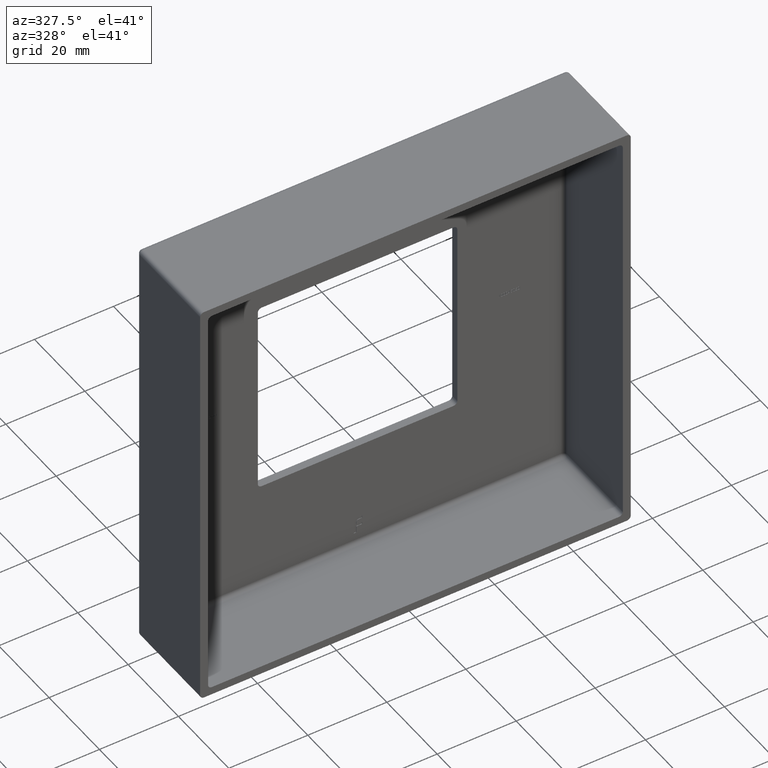
[diagram: clean part render]
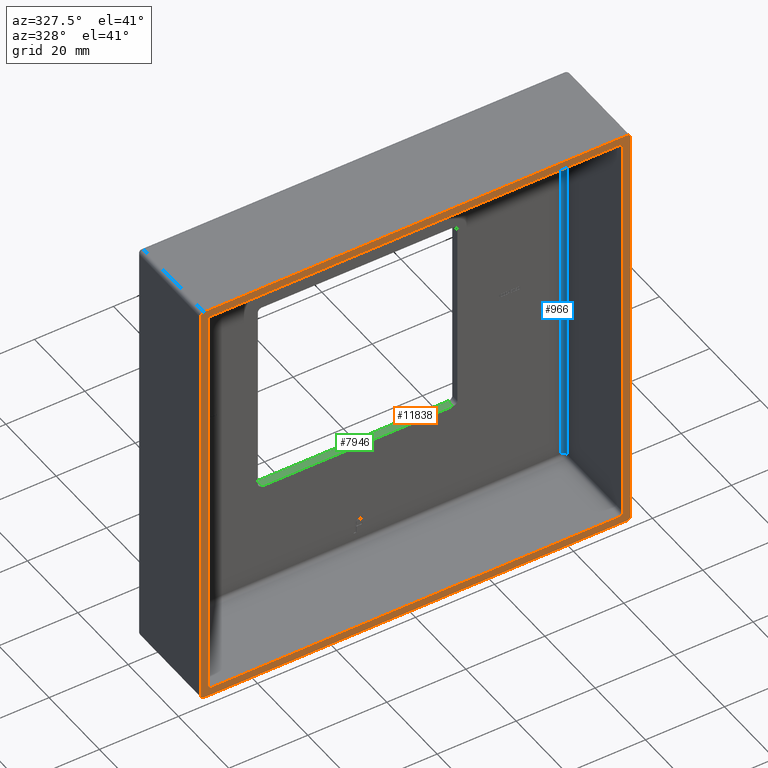
[diagram: same view with three faces highlighted in distinct colors, each labeled with its STEP entity id]
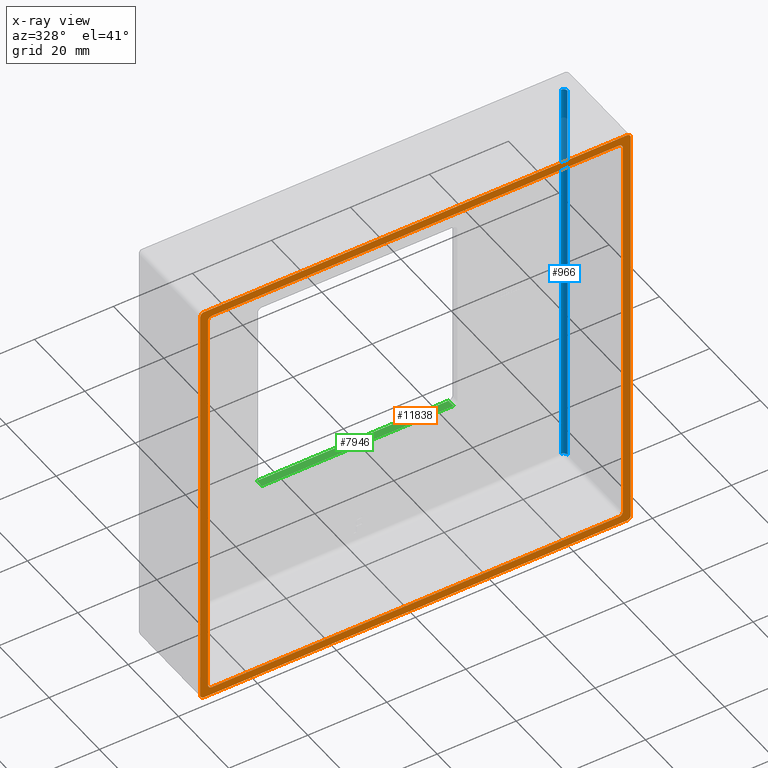
[diagram: x-ray of the same camera — body ghosted, the three highlighted faces saturated]
A machine part, auxiliary view with three faces highlighted in distinct colors.
The next image is the same camera in x-ray (body ghosted, the three faces saturated) — at least one of them is partly hidden behind the body in this view.
Their STEP definitions:

[orange] entity #11838 — the highlighted planar face has unit normal (0, 1, 0).
#179 = CARTESIAN_POINT ( 'NONE',  ( 52.50000000000000711, 0.000000000000000000, 51.49999999999999289 ) ) ;
#388 = DIRECTION ( 'NONE',  ( 1.000000000000000000, 0.000000000000000000, 0.000000000000000000 ) ) ;
#506 = CARTESIAN_POINT ( 'NONE',  ( -53.50000000000000711, 0.000000000000000000, -53.50000000000000000 ) ) ;
#750 = CIRCLE ( 'NONE', #2218, 1.000000000000000888 ) ;
#759 = CARTESIAN_POINT ( 'NONE',  ( -51.50000000000000711, 0.000000000000000000, -51.50000000000000000 ) ) ;
#862 = AXIS2_PLACEMENT_3D ( 'NONE', #8783, #11631, #7368 ) ;
#1342 = CARTESIAN_POINT ( 'NONE',  ( -52.49999999999999289, 0.000000000000000000, 51.49999999999998579 ) ) ;
#1629 = VERTEX_POINT ( 'NONE', #2452 ) ;
#1691 = VERTEX_POINT ( 'NONE', #10672 ) ;
#1896 = VECTOR ( 'NONE', #10969, 1000.000000000000000 ) ;
#1903 = PLANE ( 'NONE',  #12198 ) ;
#2003 = EDGE_CURVE ( 'NONE', #4672, #4802, #14427, .T. ) ;
#2160 = ORIENTED_EDGE ( 'NONE', *, *, #15362, .T. ) ;
#2218 = AXIS2_PLACEMENT_3D ( 'NONE', #2284, #14529, #17210 ) ;
#2238 = VECTOR ( 'NONE', #11692, 1000.000000000000000 ) ;
#2284 = CARTESIAN_POINT ( 'NONE',  ( 51.50000000000000711, 0.000000000000000000, 51.49999999999999289 ) ) ;
#2321 = CARTESIAN_POINT ( 'NONE',  ( 51.49999999999998579, 0.000000000000000000, -51.50000000000000711 ) ) ;
#2452 = CARTESIAN_POINT ( 'NONE',  ( -53.50000000000000711, 0.000000000000000000, -54.50000000000000000 ) ) ;
#2571 = EDGE_CURVE ( 'NONE', #5903, #13442, #14873, .T. ) ;
#2639 = AXIS2_PLACEMENT_3D ( 'NONE', #5487, #17447, #9490 ) ;
#2664 = LINE ( 'NONE', #13098, #2238 ) ;
#2719 = ORIENTED_EDGE ( 'NONE', *, *, #5095, .F. ) ;
#2728 = ORIENTED_EDGE ( 'NONE', *, *, #4803, .T. ) ;
#2925 = CARTESIAN_POINT ( 'NONE',  ( -54.50000000000000711, 0.000000000000000000, -52.50000000000000000 ) ) ;
#3331 = ORIENTED_EDGE ( 'NONE', *, *, #7175, .T. ) ;
#3370 = EDGE_CURVE ( 'NONE', #5903, #14940, #8477, .T. ) ;
#3434 = CIRCLE ( 'NONE', #6070, 1.000000000000000888 ) ;
#3521 = VERTEX_POINT ( 'NONE', #12221 ) ;
#3695 = DIRECTION ( 'NONE',  ( 0.000000000000000000, 0.000000000000000000, 1.000000000000000000 ) ) ;
#3997 = ORIENTED_EDGE ( 'NONE', *, *, #2571, .T. ) ;
#4069 = CIRCLE ( 'NONE', #13458, 1.000000000000000888 ) ;
#4360 = ORIENTED_EDGE ( 'NONE', *, *, #15927, .T. ) ;
#4500 = CARTESIAN_POINT ( 'NONE',  ( -53.49999999999999289, 0.000000000000000000, 54.49999999999999289 ) ) ;
#4505 = CARTESIAN_POINT ( 'NONE',  ( 54.50000000000000711, 0.000000000000000000, 53.49999999999999289 ) ) ;
#4587 = ORIENTED_EDGE ( 'NONE', *, *, #7355, .T. ) ;
#4672 = VERTEX_POINT ( 'NONE', #179 ) ;
#4716 = CARTESIAN_POINT ( 'NONE',  ( -54.50000000000000711, 0.000000000000000000, -54.50000000000000000 ) ) ;
#4802 = VERTEX_POINT ( 'NONE', #11646 ) ;
#4803 = EDGE_CURVE ( 'NONE', #9056, #3521, #13310, .T. ) ;
#5001 = CIRCLE ( 'NONE', #862, 1.000000000000000888 ) ;
#5095 = EDGE_CURVE ( 'NONE', #12000, #15005, #15666, .T. ) ;
#5195 = ORIENTED_EDGE ( 'NONE', *, *, #7479, .T. ) ;
#5257 = CARTESIAN_POINT ( 'NONE',  ( -54.49999999999999289, 0.000000000000000000, 53.49999999999998579 ) ) ;
#5482 = CIRCLE ( 'NONE', #12745, 1.000000000000000888 ) ;
#5487 = CARTESIAN_POINT ( 'NONE',  ( 53.50000000000000711, 0.000000000000000000, 53.49999999999999289 ) ) ;
#5526 = DIRECTION ( 'NONE',  ( -1.909787313001989722E-16, 0.000000000000000000, -1.000000000000000000 ) ) ;
#5798 = CARTESIAN_POINT ( 'NONE',  ( 53.49999999999997868, 0.000000000000000000, -54.50000000000000711 ) ) ;
#5903 = VERTEX_POINT ( 'NONE', #4505 ) ;
#6070 = AXIS2_PLACEMENT_3D ( 'NONE', #7641, #11913, #11683 ) ;
#6155 = AXIS2_PLACEMENT_3D ( 'NONE', #759, #11584, #12883 ) ;
#6247 = DIRECTION ( 'NONE',  ( -0.000000000000000000, -1.000000000000000000, -0.000000000000000000 ) ) ;
#6335 = ORIENTED_EDGE ( 'NONE', *, *, #13108, .T. ) ;
#6721 = VERTEX_POINT ( 'NONE', #1342 ) ;
#6783 = EDGE_CURVE ( 'NONE', #1691, #9056, #15877, .T. ) ;
#6866 = ORIENTED_EDGE ( 'NONE', *, *, #11666, .T. ) ;
#7125 = CARTESIAN_POINT ( 'NONE',  ( 51.50000000000000711, 0.000000000000000000, 52.49999999999999289 ) ) ;
#7175 = EDGE_CURVE ( 'NONE', #4802, #1691, #8663, .T. ) ;
#7191 = DIRECTION ( 'NONE',  ( 0.000000000000000000, 0.000000000000000000, 1.000000000000000000 ) ) ;
#7355 = EDGE_CURVE ( 'NONE', #3521, #6721, #8858, .T. ) ;
#7368 = DIRECTION ( 'NONE',  ( 0.000000000000000000, 0.000000000000000000, 1.000000000000000000 ) ) ;
#7468 = DIRECTION ( 'NONE',  ( -1.909787313001989475E-16, -0.000000000000000000, -1.000000000000000000 ) ) ;
#7479 = EDGE_CURVE ( 'NONE', #11619, #14940, #5482, .T. ) ;
#7604 = CARTESIAN_POINT ( 'NONE',  ( 54.49999999999998579, 0.000000000000000000, -53.50000000000000711 ) ) ;
#7641 = CARTESIAN_POINT ( 'NONE',  ( -53.49999999999999289, 0.000000000000000000, 53.49999999999999289 ) ) ;
#7643 = VECTOR ( 'NONE', #5526, 1000.000000000000000 ) ;
#7711 = FACE_BOUND ( 'NONE', #16148, .T. ) ;
#8116 = VECTOR ( 'NONE', #388, 1000.000000000000000 ) ;
#8219 = EDGE_LOOP ( 'NONE', ( #13277, #5195, #9971, #3997, #12204, #2160, #2719, #4360 ) ) ;
#8244 = VECTOR ( 'NONE', #16805, 1000.000000000000000 ) ;
#8255 = CARTESIAN_POINT ( 'NONE',  ( 53.50000000000000711, 0.000000000000000000, 54.49999999999999289 ) ) ;
#8408 = ORIENTED_EDGE ( 'NONE', *, *, #2003, .T. ) ;
#8477 = LINE ( 'NONE', #13849, #10609 ) ;
#8512 = DIRECTION ( 'NONE',  ( 0.000000000000000000, 1.000000000000000000, 0.000000000000000000 ) ) ;
#8539 = AXIS2_PLACEMENT_3D ( 'NONE', #2321, #14634, #10376 ) ;
#8663 = CIRCLE ( 'NONE', #8539, 1.000000000000000888 ) ;
#8783 = CARTESIAN_POINT ( 'NONE',  ( -51.49999999999999289, 0.000000000000000000, 51.49999999999998579 ) ) ;
#8858 = LINE ( 'NONE', #16768, #13297 ) ;
#9056 = VERTEX_POINT ( 'NONE', #10474 ) ;
#9490 = DIRECTION ( 'NONE',  ( 0.000000000000000000, 0.000000000000000000, 1.000000000000000000 ) ) ;
#9821 = DIRECTION ( 'NONE',  ( 0.000000000000000000, -0.000000000000000000, 1.000000000000000000 ) ) ;
#9971 = ORIENTED_EDGE ( 'NONE', *, *, #3370, .F. ) ;
#10262 = VECTOR ( 'NONE', #10457, 1000.000000000000000 ) ;
#10323 = VERTEX_POINT ( 'NONE', #4500 ) ;
#10376 = DIRECTION ( 'NONE',  ( 0.000000000000000000, 0.000000000000000000, 1.000000000000000000 ) ) ;
#10457 = DIRECTION ( 'NONE',  ( 1.000000000000000000, -0.000000000000000000, 0.000000000000000000 ) ) ;
#10474 = CARTESIAN_POINT ( 'NONE',  ( -51.50000000000000711, 0.000000000000000000, -52.50000000000000000 ) ) ;
#10609 = VECTOR ( 'NONE', #7468, 1000.000000000000000 ) ;
#10672 = CARTESIAN_POINT ( 'NONE',  ( 51.49999999999997868, 0.000000000000000000, -52.50000000000000711 ) ) ;
#10836 = EDGE_CURVE ( 'NONE', #6721, #11545, #5001, .T. ) ;
#10956 = EDGE_CURVE ( 'NONE', #11619, #1629, #2664, .T. ) ;
#10969 = DIRECTION ( 'NONE',  ( -1.000000000000000000, 0.000000000000000000, 6.365957710006634050E-17 ) ) ;
#11097 = DIRECTION ( 'NONE',  ( -0.000000000000000000, -1.000000000000000000, -0.000000000000000000 ) ) ;
#11098 = FACE_OUTER_BOUND ( 'NONE', #8219, .T. ) ;
#11181 = CARTESIAN_POINT ( 'NONE',  ( 0.000000000000000000, 0.000000000000000000, 0.000000000000000000 ) ) ;
#11545 = VERTEX_POINT ( 'NONE', #17419 ) ;
#11584 = DIRECTION ( 'NONE',  ( 0.000000000000000000, 1.000000000000000000, 0.000000000000000000 ) ) ;
#11619 = VERTEX_POINT ( 'NONE', #5798 ) ;
#11631 = DIRECTION ( 'NONE',  ( 0.000000000000000000, 1.000000000000000000, 0.000000000000000000 ) ) ;
#11646 = CARTESIAN_POINT ( 'NONE',  ( 52.49999999999998579, 0.000000000000000000, -51.50000000000000711 ) ) ;
#11666 = EDGE_CURVE ( 'NONE', #13511, #4672, #750, .T. ) ;
#11683 = DIRECTION ( 'NONE',  ( 0.000000000000000000, 0.000000000000000000, 1.000000000000000000 ) ) ;
#11692 = DIRECTION ( 'NONE',  ( -1.000000000000000000, -0.000000000000000000, 6.365957710006634050E-17 ) ) ;
#11838 = ADVANCED_FACE ( 'NONE', ( #7711, #11098 ), #1903, .F. ) ;
#11913 = DIRECTION ( 'NONE',  ( -0.000000000000000000, -1.000000000000000000, -0.000000000000000000 ) ) ;
#12000 = VERTEX_POINT ( 'NONE', #13290 ) ;
#12198 = AXIS2_PLACEMENT_3D ( 'NONE', #11181, #8512, #9821 ) ;
#12204 = ORIENTED_EDGE ( 'NONE', *, *, #13514, .F. ) ;
#12221 = CARTESIAN_POINT ( 'NONE',  ( -52.50000000000000711, 0.000000000000000000, -51.50000000000000000 ) ) ;
#12364 = LINE ( 'NONE', #15737, #10262 ) ;
#12745 = AXIS2_PLACEMENT_3D ( 'NONE', #17098, #6247, #3695 ) ;
#12883 = DIRECTION ( 'NONE',  ( 0.000000000000000000, 0.000000000000000000, 1.000000000000000000 ) ) ;
#12980 = LINE ( 'NONE', #16804, #8116 ) ;
#13098 = CARTESIAN_POINT ( 'NONE',  ( -54.50000000000000711, 0.000000000000000000, -54.50000000000000000 ) ) ;
#13108 = EDGE_CURVE ( 'NONE', #11545, #13511, #12364, .T. ) ;
#13277 = ORIENTED_EDGE ( 'NONE', *, *, #10956, .F. ) ;
#13290 = CARTESIAN_POINT ( 'NONE',  ( -54.50000000000000711, 0.000000000000000000, -53.50000000000000000 ) ) ;
#13297 = VECTOR ( 'NONE', #15338, 1000.000000000000000 ) ;
#13310 = CIRCLE ( 'NONE', #6155, 1.000000000000000888 ) ;
#13442 = VERTEX_POINT ( 'NONE', #8255 ) ;
#13458 = AXIS2_PLACEMENT_3D ( 'NONE', #506, #11097, #7191 ) ;
#13511 = VERTEX_POINT ( 'NONE', #7125 ) ;
#13514 = EDGE_CURVE ( 'NONE', #10323, #13442, #12980, .T. ) ;
#13849 = CARTESIAN_POINT ( 'NONE',  ( 54.49999999999998579, 0.000000000000000000, -54.50000000000000711 ) ) ;
#14106 = ORIENTED_EDGE ( 'NONE', *, *, #10836, .T. ) ;
#14427 = LINE ( 'NONE', #14885, #7643 ) ;
#14529 = DIRECTION ( 'NONE',  ( 0.000000000000000000, 1.000000000000000000, 0.000000000000000000 ) ) ;
#14634 = DIRECTION ( 'NONE',  ( 0.000000000000000000, 1.000000000000000000, 0.000000000000000000 ) ) ;
#14873 = CIRCLE ( 'NONE', #2639, 1.000000000000000888 ) ;
#14885 = CARTESIAN_POINT ( 'NONE',  ( 52.49999999999998579, 0.000000000000000000, -54.50000000000000711 ) ) ;
#14940 = VERTEX_POINT ( 'NONE', #7604 ) ;
#15005 = VERTEX_POINT ( 'NONE', #5257 ) ;
#15338 = DIRECTION ( 'NONE',  ( 1.273191542001326810E-16, -0.000000000000000000, 1.000000000000000000 ) ) ;
#15362 = EDGE_CURVE ( 'NONE', #10323, #15005, #3434, .T. ) ;
#15666 = LINE ( 'NONE', #4716, #8244 ) ;
#15737 = CARTESIAN_POINT ( 'NONE',  ( -54.49999999999999289, 0.000000000000000000, 52.49999999999999289 ) ) ;
#15765 = ORIENTED_EDGE ( 'NONE', *, *, #6783, .T. ) ;
#15877 = LINE ( 'NONE', #2925, #1896 ) ;
#15927 = EDGE_CURVE ( 'NONE', #12000, #1629, #4069, .T. ) ;
#16148 = EDGE_LOOP ( 'NONE', ( #4587, #14106, #6335, #6866, #8408, #3331, #15765, #2728 ) ) ;
#16768 = CARTESIAN_POINT ( 'NONE',  ( -52.50000000000000711, 0.000000000000000000, -54.50000000000000000 ) ) ;
#16804 = CARTESIAN_POINT ( 'NONE',  ( -54.49999999999999289, 0.000000000000000000, 54.49999999999999289 ) ) ;
#16805 = DIRECTION ( 'NONE',  ( 1.273191542001326810E-16, 0.000000000000000000, 1.000000000000000000 ) ) ;
#17098 = CARTESIAN_POINT ( 'NONE',  ( 53.49999999999997868, 0.000000000000000000, -53.50000000000000711 ) ) ;
#17210 = DIRECTION ( 'NONE',  ( 0.000000000000000000, 0.000000000000000000, 1.000000000000000000 ) ) ;
#17419 = CARTESIAN_POINT ( 'NONE',  ( -51.49999999999999289, 0.000000000000000000, 52.49999999999999289 ) ) ;
#17447 = DIRECTION ( 'NONE',  ( -0.000000000000000000, -1.000000000000000000, -0.000000000000000000 ) ) ;

[blue] entity #966 — the highlighted cylindrical surface (edge-blend (fillet) strip) has radius 1 mm, axis along (-0, 0, -1).
#591 = EDGE_LOOP ( 'NONE', ( #3283, #16634, #990, #7359 ) ) ;
#966 = ADVANCED_FACE ( 'NONE', ( #9362 ), #8097, .F. ) ;
#990 = ORIENTED_EDGE ( 'NONE', *, *, #1428, .F. ) ;
#1254 = EDGE_CURVE ( 'NONE', #2264, #15162, #1960, .T. ) ;
#1423 = DIRECTION ( 'NONE',  ( 1.909787313001989722E-16, -0.000000000000000000, 1.000000000000000000 ) ) ;
#1428 = EDGE_CURVE ( 'NONE', #2299, #6996, #9144, .T. ) ;
#1536 = CARTESIAN_POINT ( 'NONE',  ( 52.49999999999998579, 22.00000000000000000, -51.50000000000000711 ) ) ;
#1943 = DIRECTION ( 'NONE',  ( 0.000000000000000000, 0.000000000000000000, 1.000000000000000000 ) ) ;
#1960 = CIRCLE ( 'NONE', #12487, 1.000000000000000888 ) ;
#2264 = VERTEX_POINT ( 'NONE', #13234 ) ;
#2299 = VERTEX_POINT ( 'NONE', #1536 ) ;
#3283 = ORIENTED_EDGE ( 'NONE', *, *, #1254, .T. ) ;
#3585 = VECTOR ( 'NONE', #1423, 1000.000000000000000 ) ;
#3791 = DIRECTION ( 'NONE',  ( -1.000000000000000000, 0.000000000000000000, 0.000000000000000000 ) ) ;
#4007 = LINE ( 'NONE', #14980, #3585 ) ;
#4761 = CARTESIAN_POINT ( 'NONE',  ( 51.49999999999998579, 23.00000000000000000, -51.50000000000000711 ) ) ;
#5029 = EDGE_CURVE ( 'NONE', #2264, #2299, #11427, .T. ) ;
#5781 = EDGE_CURVE ( 'NONE', #6996, #15162, #4007, .T. ) ;
#5790 = DIRECTION ( 'NONE',  ( -1.000000000000000000, 0.000000000000000000, 0.000000000000000000 ) ) ;
#6996 = VERTEX_POINT ( 'NONE', #4761 ) ;
#7359 = ORIENTED_EDGE ( 'NONE', *, *, #5029, .F. ) ;
#7747 = CARTESIAN_POINT ( 'NONE',  ( 51.50000000000000711, 22.00000000000000000, 51.49999999999999289 ) ) ;
#8097 = CYLINDRICAL_SURFACE ( 'NONE', #11918, 1.000000000000000888 ) ;
#8598 = CARTESIAN_POINT ( 'NONE',  ( 51.50000000000000711, 23.00000000000000000, 51.49999999999999289 ) ) ;
#9144 = CIRCLE ( 'NONE', #9421, 1.000000000000000888 ) ;
#9362 = FACE_OUTER_BOUND ( 'NONE', #591, .T. ) ;
#9421 = AXIS2_PLACEMENT_3D ( 'NONE', #10047, #1943, #11399 ) ;
#10047 = CARTESIAN_POINT ( 'NONE',  ( 51.49999999999998579, 22.00000000000000000, -51.50000000000000711 ) ) ;
#11399 = DIRECTION ( 'NONE',  ( 1.000000000000000000, 0.000000000000000000, 0.000000000000000000 ) ) ;
#11427 = LINE ( 'NONE', #14850, #12695 ) ;
#11918 = AXIS2_PLACEMENT_3D ( 'NONE', #12760, #14118, #5790 ) ;
#12487 = AXIS2_PLACEMENT_3D ( 'NONE', #7747, #17249, #3791 ) ;
#12695 = VECTOR ( 'NONE', #16152, 1000.000000000000000 ) ;
#12760 = CARTESIAN_POINT ( 'NONE',  ( 51.49999999999998579, 22.00000000000000000, -54.50000000000000711 ) ) ;
#13234 = CARTESIAN_POINT ( 'NONE',  ( 52.50000000000000711, 22.00000000000000000, 51.49999999999999289 ) ) ;
#14118 = DIRECTION ( 'NONE',  ( -1.909787313001989722E-16, 0.000000000000000000, -1.000000000000000000 ) ) ;
#14850 = CARTESIAN_POINT ( 'NONE',  ( 52.49999999999998579, 22.00000000000000000, -54.50000000000000711 ) ) ;
#14980 = CARTESIAN_POINT ( 'NONE',  ( 51.50000000000000000, 23.00000000000000000, -9.835404661960246365E-15 ) ) ;
#15162 = VERTEX_POINT ( 'NONE', #8598 ) ;
#16152 = DIRECTION ( 'NONE',  ( -1.909787313001989722E-16, 0.000000000000000000, -1.000000000000000000 ) ) ;
#16634 = ORIENTED_EDGE ( 'NONE', *, *, #5781, .F. ) ;
#17249 = DIRECTION ( 'NONE',  ( -0.000000000000000000, -0.000000000000000000, 1.000000000000000000 ) ) ;

[green] entity #7946 — the highlighted planar face has unit normal (0, 0, -1).
#6 = DIRECTION ( 'NONE',  ( -1.000000000000000000, 0.000000000000000000, 0.000000000000000000 ) ) ;
#284 = DIRECTION ( 'NONE',  ( -1.000000000000000000, 0.000000000000000000, -0.000000000000000000 ) ) ;
#381 = VERTEX_POINT ( 'NONE', #5470 ) ;
#391 = VECTOR ( 'NONE', #6, 1000.000000000000000 ) ;
#1715 = DIRECTION ( 'NONE',  ( 0.000000000000000000, 0.000000000000000000, -1.000000000000000000 ) ) ;
#2195 = CARTESIAN_POINT ( 'NONE',  ( 24.24999999999998579, 23.00000000000000000, -25.25000000000000000 ) ) ;
#2578 = LINE ( 'NONE', #8371, #16983 ) ;
#2691 = EDGE_CURVE ( 'NONE', #12828, #8789, #16764, .T. ) ;
#3129 = ORIENTED_EDGE ( 'NONE', *, *, #16943, .T. ) ;
#3569 = LINE ( 'NONE', #4105, #14167 ) ;
#3994 = LINE ( 'NONE', #5344, #391 ) ;
#4105 = CARTESIAN_POINT ( 'NONE',  ( -25.25000000000000000, 25.00000000000000000, -25.25000000000000000 ) ) ;
#5344 = CARTESIAN_POINT ( 'NONE',  ( 0.000000000000000000, 23.00000000000000000, -25.25000000000000000 ) ) ;
#5420 = DIRECTION ( 'NONE',  ( -1.000000000000000000, -0.000000000000000000, -0.000000000000000000 ) ) ;
#5470 = CARTESIAN_POINT ( 'NONE',  ( -24.25000000000000000, 23.00000000000000000, -25.25000000000000000 ) ) ;
#5770 = ORIENTED_EDGE ( 'NONE', *, *, #7902, .F. ) ;
#6676 = EDGE_CURVE ( 'NONE', #8789, #7979, #3569, .T. ) ;
#7030 = CARTESIAN_POINT ( 'NONE',  ( -24.25000000000000000, 25.00000000000000000, -25.25000000000000000 ) ) ;
#7237 = ORIENTED_EDGE ( 'NONE', *, *, #2691, .T. ) ;
#7410 = CARTESIAN_POINT ( 'NONE',  ( 24.24999999999998579, 25.00000000000000000, -25.25000000000000000 ) ) ;
#7902 = EDGE_CURVE ( 'NONE', #12828, #381, #3994, .T. ) ;
#7946 = ADVANCED_FACE ( 'NONE', ( #17552 ), #13824, .F. ) ;
#7979 = VERTEX_POINT ( 'NONE', #7030 ) ;
#8239 = CARTESIAN_POINT ( 'NONE',  ( 24.24999999999998579, 25.00000000000000000, -25.25000000000000000 ) ) ;
#8371 = CARTESIAN_POINT ( 'NONE',  ( -24.25000000000000000, 23.00000000000000000, -25.25000000000000000 ) ) ;
#8789 = VERTEX_POINT ( 'NONE', #8239 ) ;
#10962 = EDGE_LOOP ( 'NONE', ( #5770, #7237, #13645, #3129 ) ) ;
#11373 = DIRECTION ( 'NONE',  ( -0.000000000000000000, 1.000000000000000000, 0.000000000000000000 ) ) ;
#12406 = AXIS2_PLACEMENT_3D ( 'NONE', #16869, #1715, #284 ) ;
#12828 = VERTEX_POINT ( 'NONE', #2195 ) ;
#13133 = VECTOR ( 'NONE', #11373, 1000.000000000000000 ) ;
#13645 = ORIENTED_EDGE ( 'NONE', *, *, #6676, .T. ) ;
#13824 = PLANE ( 'NONE',  #12406 ) ;
#14167 = VECTOR ( 'NONE', #5420, 1000.000000000000000 ) ;
#16690 = DIRECTION ( 'NONE',  ( 0.000000000000000000, -1.000000000000000000, -0.000000000000000000 ) ) ;
#16764 = LINE ( 'NONE', #7410, #13133 ) ;
#16869 = CARTESIAN_POINT ( 'NONE',  ( -25.25000000000000000, 0.000000000000000000, -25.25000000000000000 ) ) ;
#16943 = EDGE_CURVE ( 'NONE', #7979, #381, #2578, .T. ) ;
#16983 = VECTOR ( 'NONE', #16690, 1000.000000000000000 ) ;
#17552 = FACE_OUTER_BOUND ( 'NONE', #10962, .T. ) ;